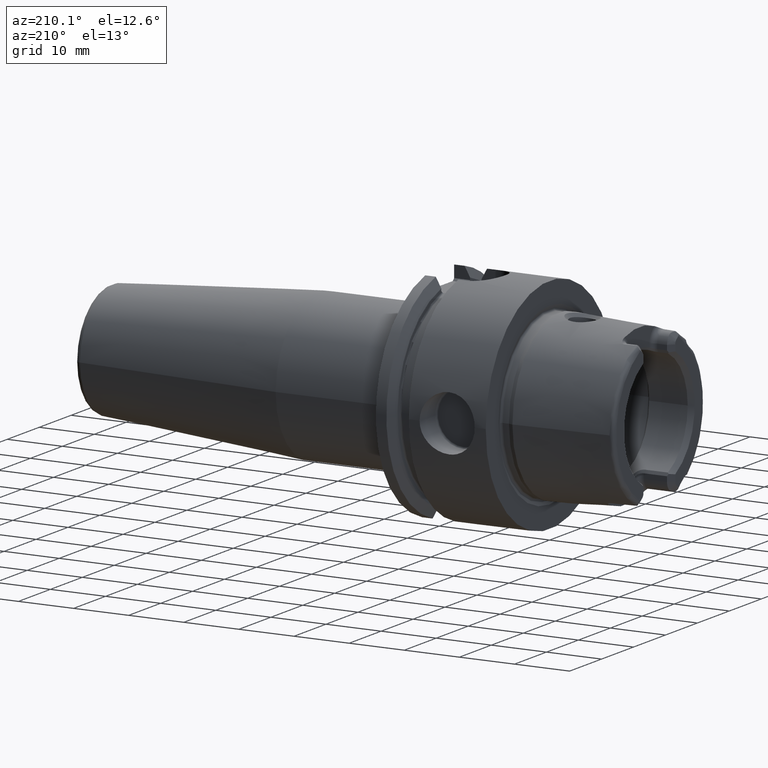
[diagram: clean part render]
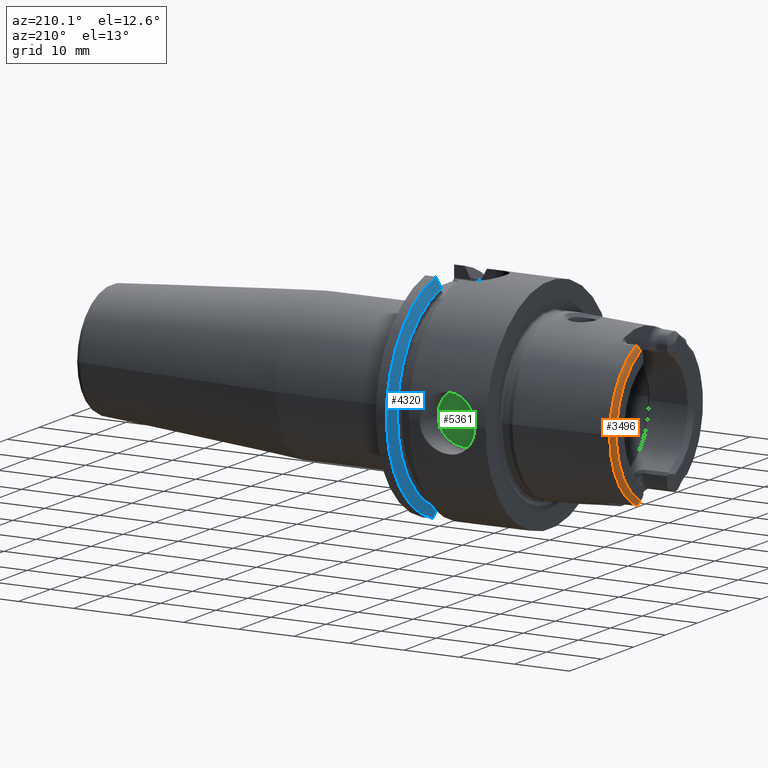
[diagram: same view with three faces highlighted in distinct colors, each labeled with its STEP entity id]
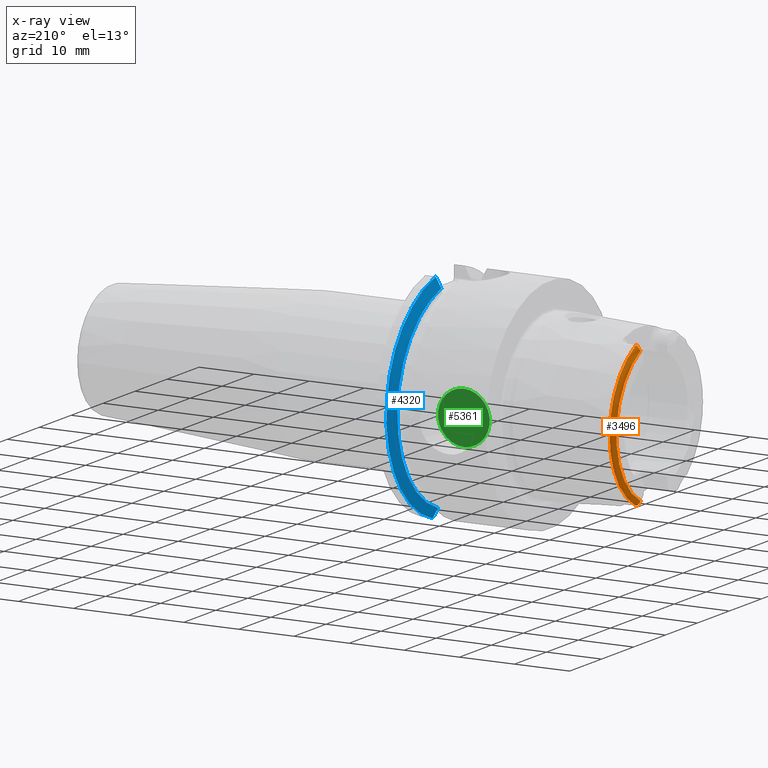
[diagram: x-ray of the same camera — body ghosted, the three highlighted faces saturated]
A machine part, auxiliary view with three faces highlighted in distinct colors.
The next image is the same camera in x-ray (body ghosted, the three faces saturated) — at least one of them is partly hidden behind the body in this view.
Their STEP definitions:

[orange] entity #3496 — the highlighted toroidal blend (fillet) surface has major radius 13.446 mm and minor (blend) radius 0.8 mm.
#287=CARTESIAN_POINT('',(-1.933856537110E1,6.001498304814E0,-1.288E1));
#288=CARTESIAN_POINT('',(-1.937741624492E1,6.030738525111E0,-1.285298455424E1));
#289=CARTESIAN_POINT('',(-1.945189770967E1,6.080432291458E0,-1.279679302161E1));
#290=CARTESIAN_POINT('',(-1.955612285287E1,6.130869348046E0,-1.270495335874E1));
#291=CARTESIAN_POINT('',(-1.964568635498E1,6.155054243125E0,-1.261278627615E1));
#292=CARTESIAN_POINT('',(-1.971903364919E1,6.156869370658E0,-1.252486641047E1));
#293=CARTESIAN_POINT('',(-1.977905858015E1,6.139919780195E0,-1.244016828005E1));
#294=CARTESIAN_POINT('',(-1.982542666297E1,6.107236062619E0,-1.236119414965E1));
#295=CARTESIAN_POINT('',(-1.985958687227E1,6.062161703514E0,-1.228849433094E1));
#296=CARTESIAN_POINT('',(-1.988361122E1,6.004727620915E0,-1.221957106927E1));
#297=CARTESIAN_POINT('',(-1.989729045519E1,5.936777890354E0,-1.215595391639E1));
#298=CARTESIAN_POINT('',(-1.99E1,5.887601752234E0,-1.211865522981E1));
#299=CARTESIAN_POINT('',(-1.99E1,5.861946291559E0,-1.210091492411E1));
#301=CARTESIAN_POINT('',(-1.914002979389E1,6.084832258490E0,-1.288E1));
#302=CARTESIAN_POINT('',(-1.915835311417E1,6.082683165194E0,-1.288E1));
#303=CARTESIAN_POINT('',(-1.919411876430E1,6.075541055501E0,-1.288E1));
#304=CARTESIAN_POINT('',(-1.924543426645E1,6.057213687171E0,-1.288E1));
#305=CARTESIAN_POINT('',(-1.929394227686E1,6.032308701799E0,-1.288E1));
#306=CARTESIAN_POINT('',(-1.932397586650E1,6.012290336726E0,-1.288E1));
#307=CARTESIAN_POINT('',(-1.933856537110E1,6.001498304814E0,-1.288E1));
#309=CARTESIAN_POINT('',(-1.914002979389E1,0.E0,0.E0));
#310=DIRECTION('',(-1.E0,0.E0,0.E0));
#311=DIRECTION('',(0.E0,1.E0,0.E0));
#312=AXIS2_PLACEMENT_3D('',#309,#310,#311);
#314=CARTESIAN_POINT('',(-1.914002979389E1,0.E0,0.E0));
#315=DIRECTION('',(1.E0,0.E0,0.E0));
#316=DIRECTION('',(0.E0,1.E0,0.E0));
#317=AXIS2_PLACEMENT_3D('',#314,#315,#316);
#319=CARTESIAN_POINT('',(-1.933856537110E1,6.001498304814E0,1.288E1));
#320=CARTESIAN_POINT('',(-1.930590454157E1,6.025657912976E0,1.288E1));
#321=CARTESIAN_POINT('',(-1.923986516807E1,6.063370586492E0,1.288E1));
#322=CARTESIAN_POINT('',(-1.917341303165E1,6.080916827696E0,1.288E1));
#323=CARTESIAN_POINT('',(-1.914002979389E1,6.084832258490E0,1.288E1));
#325=CARTESIAN_POINT('',(-1.99E1,5.861946291559E0,1.210091492411E1));
#326=CARTESIAN_POINT('',(-1.99E1,5.887620623430E0,1.211866827891E1));
#327=CARTESIAN_POINT('',(-1.989728681245E1,5.936830643930E0,1.215599482338E1));
#328=CARTESIAN_POINT('',(-1.988358517250E1,6.004825612755E0,1.221967049725E1));
#329=CARTESIAN_POINT('',(-1.985952692540E1,6.062274284079E0,1.228864506132E1));
#330=CARTESIAN_POINT('',(-1.982531616070E1,6.107349309172E0,1.236140680537E1));
#331=CARTESIAN_POINT('',(-1.977889126483E1,6.140000651410E0,1.244042762158E1));
#332=CARTESIAN_POINT('',(-1.971882771655E1,6.156892338292E0,1.252513266328E1));
#333=CARTESIAN_POINT('',(-1.964546656454E1,6.155017279759E0,1.261302793589E1));
#334=CARTESIAN_POINT('',(-1.955593123842E1,6.130790777275E0,1.270513199159E1));
#335=CARTESIAN_POINT('',(-1.945178453020E1,6.080360484488E0,1.279688097093E1));
#336=CARTESIAN_POINT('',(-1.937737472390E1,6.030707275268E0,1.285301342640E1));
#337=CARTESIAN_POINT('',(-1.933856537110E1,6.001498304814E0,1.288E1));
#339=CARTESIAN_POINT('',(-1.99E1,0.E0,0.E0));
#340=DIRECTION('',(-1.E0,0.E0,0.E0));
#341=DIRECTION('',(0.E0,4.359625258411E-1,8.999648193470E-1));
#342=AXIS2_PLACEMENT_3D('',#339,#340,#341);
#2692=CARTESIAN_POINT('',(-1.914002979389E1,1.424498450733E1,0.E0));
#2693=VERTEX_POINT('',#2692);
#2708=CARTESIAN_POINT('',(-1.914002979389E1,6.084832258490E0,1.288E1));
#2709=VERTEX_POINT('',#2708);
#2712=CARTESIAN_POINT('',(-1.914002979389E1,6.084832258490E0,-1.288E1));
#2713=VERTEX_POINT('',#2712);
#2797=CARTESIAN_POINT('',(-1.99E1,5.861946291559E0,1.210091492411E1));
#2798=VERTEX_POINT('',#2797);
#2799=VERTEX_POINT('',#337);
#2829=CARTESIAN_POINT('',(-1.99E1,5.861946291559E0,-1.210091492411E1));
#2830=VERTEX_POINT('',#2829);
#2831=VERTEX_POINT('',#287);
#3478=CARTESIAN_POINT('',(-1.91E1,0.E0,0.E0));
#3479=DIRECTION('',(1.E0,0.E0,0.E0));
#3480=DIRECTION('',(0.E0,-1.E0,0.E0));
#3481=AXIS2_PLACEMENT_3D('',#3478,#3479,#3480);
#3482=TOROIDAL_SURFACE('',#3481,1.344598662523E1,8.E-1);
#3484=ORIENTED_EDGE('',*,*,#3483,.F.);
#3486=ORIENTED_EDGE('',*,*,#3485,.F.);
#3488=ORIENTED_EDGE('',*,*,#3487,.F.);
#3489=ORIENTED_EDGE('',*,*,#3199,.T.);
#3491=ORIENTED_EDGE('',*,*,#3490,.F.);
#3492=ORIENTED_EDGE('',*,*,#3469,.F.);
#3493=ORIENTED_EDGE('',*,*,#3263,.T.);
#3494=EDGE_LOOP('',(#3484,#3486,#3488,#3489,#3491,#3492,#3493));
#3495=FACE_OUTER_BOUND('',#3494,.F.);
#3496=ADVANCED_FACE('',(#3495),#3482,.T.);
#300=B_SPLINE_CURVE_WITH_KNOTS('',3,(#287,#288,#289,#290,#291,#292,#293,#294,
#295,#296,#297,#298,#299),.UNSPECIFIED.,.F.,.F.,(4,1,1,1,1,1,1,1,1,1,4),(0.E0,
1.E-1,2.E-1,3.E-1,4.E-1,5.E-1,6.E-1,7.E-1,8.E-1,9.E-1,1.E0),.UNSPECIFIED.);
#308=B_SPLINE_CURVE_WITH_KNOTS('',3,(#301,#302,#303,#304,#305,#306,#307),
.UNSPECIFIED.,.F.,.F.,(4,1,1,1,4),(0.E0,2.5E-1,5.E-1,7.5E-1,1.E0),
.UNSPECIFIED.);
#313=CIRCLE('',#312,1.424498450733E1);
#318=CIRCLE('',#317,1.424498450733E1);
#324=B_SPLINE_CURVE_WITH_KNOTS('',3,(#319,#320,#321,#322,#323),.UNSPECIFIED.,
.F.,.F.,(4,1,4),(0.E0,5.E-1,1.E0),.UNSPECIFIED.);
#338=B_SPLINE_CURVE_WITH_KNOTS('',3,(#325,#326,#327,#328,#329,#330,#331,#332,
#333,#334,#335,#336,#337),.UNSPECIFIED.,.F.,.F.,(4,1,1,1,1,1,1,1,1,1,4),(0.E0,
1.E-1,2.E-1,3.E-1,4.E-1,5.E-1,6.E-1,7.E-1,8.E-1,9.E-1,1.E0),.UNSPECIFIED.);
#343=CIRCLE('',#342,1.344598662523E1);
#3199=EDGE_CURVE('',#2693,#2709,#318,.T.);
#3263=EDGE_CURVE('',#2798,#2830,#343,.T.);
#3469=EDGE_CURVE('',#2798,#2799,#338,.T.);
#3483=EDGE_CURVE('',#2831,#2830,#300,.T.);
#3485=EDGE_CURVE('',#2713,#2831,#308,.T.);
#3487=EDGE_CURVE('',#2693,#2713,#313,.T.);
#3490=EDGE_CURVE('',#2799,#2709,#324,.T.);

[blue] entity #4320 — the highlighted conical surface has half-angle 60 deg.
#1021=CARTESIAN_POINT('',(1.803515969889E1,0.E0,0.E0));
#1022=DIRECTION('',(-1.E0,0.E0,0.E0));
#1023=DIRECTION('',(0.E0,2.25725E-1,9.741910615352E-1));
#1024=AXIS2_PLACEMENT_3D('',#1021,#1022,#1023);
#1132=CARTESIAN_POINT('',(1.70375E1,0.E0,0.E0));
#1133=DIRECTION('',(-1.E0,0.E0,0.E0));
#1134=DIRECTION('',(0.E0,2.470719860842E-1,9.689971278040E-1));
#1135=AXIS2_PLACEMENT_3D('',#1132,#1133,#1134);
#1399=CARTESIAN_POINT('',(1.803515969889E1,5.5175E0,-1.922387041545E1));
#1400=CARTESIAN_POINT('',(1.791992583925E1,5.5175E0,-1.901622138812E1));
#1401=CARTESIAN_POINT('',(1.769237632933E1,5.5175E0,-1.860566967499E1));
#1402=CARTESIAN_POINT('',(1.735989185391E1,5.5175E0,-1.800420325575E1));
#1403=CARTESIAN_POINT('',(1.714399459474E1,5.5175E0,-1.761253540924E1));
#1404=CARTESIAN_POINT('',(1.70375E1,5.5175E0,-1.741904925329E1));
#1435=CARTESIAN_POINT('',(1.70375E1,4.5145E0,1.770551814798E1));
#1436=CARTESIAN_POINT('',(1.714447115751E1,4.5145E0,1.789672560819E1));
#1437=CARTESIAN_POINT('',(1.736100339003E1,4.5145E0,1.828339173494E1));
#1438=CARTESIAN_POINT('',(1.769350911179E1,4.5145E0,1.887606128139E1));
#1439=CARTESIAN_POINT('',(1.792041108712E1,4.5145E0,1.927980537228E1));
#1440=CARTESIAN_POINT('',(1.803515969889E1,4.5145E0,1.948382123070E1));
#2874=CARTESIAN_POINT('',(1.70375E1,4.5145E0,1.770551814798E1));
#2876=VERTEX_POINT('',#2874);
#2877=VERTEX_POINT('',#1440);
#2884=CARTESIAN_POINT('',(1.70375E1,5.5175E0,-1.741904925329E1));
#2886=VERTEX_POINT('',#2884);
#2887=VERTEX_POINT('',#1399);
#4306=CARTESIAN_POINT('',(1.753632984945E1,0.E0,0.E0));
#4307=DIRECTION('',(1.E0,0.E0,0.E0));
#4308=DIRECTION('',(0.E0,-1.E0,0.E0));
#4309=AXIS2_PLACEMENT_3D('',#4306,#4307,#4308);
#4310=CONICAL_SURFACE('',#4309,1.913600135643E1,6.E1);
#4312=ORIENTED_EDGE('',*,*,#4311,.T.);
#4314=ORIENTED_EDGE('',*,*,#4313,.F.);
#4315=ORIENTED_EDGE('',*,*,#4267,.F.);
#4317=ORIENTED_EDGE('',*,*,#4316,.F.);
#4318=EDGE_LOOP('',(#4312,#4314,#4315,#4317));
#4319=FACE_OUTER_BOUND('',#4318,.F.);
#4320=ADVANCED_FACE('',(#4319),#4310,.T.);
#1025=CIRCLE('',#1024,2.E1);
#1136=CIRCLE('',#1135,1.827200271285E1);
#1405=B_SPLINE_CURVE_WITH_KNOTS('',3,(#1399,#1400,#1401,#1402,#1403,#1404),
.UNSPECIFIED.,.F.,.F.,(4,1,1,4),(0.E0,3.333333333333E-1,6.666666666667E-1,1.E0),
.UNSPECIFIED.);
#1441=B_SPLINE_CURVE_WITH_KNOTS('',3,(#1435,#1436,#1437,#1438,#1439,#1440),
.UNSPECIFIED.,.F.,.F.,(4,1,1,4),(0.E0,3.333333333333E-1,6.666666666667E-1,1.E0),
.UNSPECIFIED.);
#4267=EDGE_CURVE('',#2877,#2887,#1025,.T.);
#4311=EDGE_CURVE('',#2876,#2886,#1136,.T.);
#4313=EDGE_CURVE('',#2887,#2886,#1405,.T.);
#4316=EDGE_CURVE('',#2876,#2877,#1441,.T.);

[green] entity #5361 — the highlighted planar face has unit normal (0, 1, 0).
#1978=CARTESIAN_POINT('',(7.E0,1.476491673104E1,0.E0));
#1979=DIRECTION('',(0.E0,-1.E0,0.E0));
#1980=DIRECTION('',(0.E0,0.E0,1.E0));
#1981=AXIS2_PLACEMENT_3D('',#1978,#1979,#1980);
#1983=CARTESIAN_POINT('',(7.E0,1.476491673104E1,0.E0));
#1984=DIRECTION('',(0.E0,1.E0,0.E0));
#1985=DIRECTION('',(0.E0,0.E0,1.E0));
#1986=AXIS2_PLACEMENT_3D('',#1983,#1984,#1985);
#3139=CARTESIAN_POINT('',(7.E0,1.476491673104E1,4.7E0));
#3141=VERTEX_POINT('',#3139);
#3143=CARTESIAN_POINT('',(7.E0,1.476491673104E1,-4.7E0));
#3145=VERTEX_POINT('',#3143);
#5352=CARTESIAN_POINT('',(7.E0,1.476491673104E1,0.E0));
#5353=DIRECTION('',(0.E0,1.E0,0.E0));
#5354=DIRECTION('',(0.E0,0.E0,-1.E0));
#5355=AXIS2_PLACEMENT_3D('',#5352,#5353,#5354);
#5356=PLANE('',#5355);
#5357=ORIENTED_EDGE('',*,*,#5334,.T.);
#5358=ORIENTED_EDGE('',*,*,#5345,.F.);
#5359=EDGE_LOOP('',(#5357,#5358));
#5360=FACE_OUTER_BOUND('',#5359,.F.);
#5361=ADVANCED_FACE('',(#5360),#5356,.T.);
#1982=CIRCLE('',#1981,4.7E0);
#1987=CIRCLE('',#1986,4.7E0);
#5334=EDGE_CURVE('',#3141,#3145,#1982,.T.);
#5345=EDGE_CURVE('',#3141,#3145,#1987,.T.);